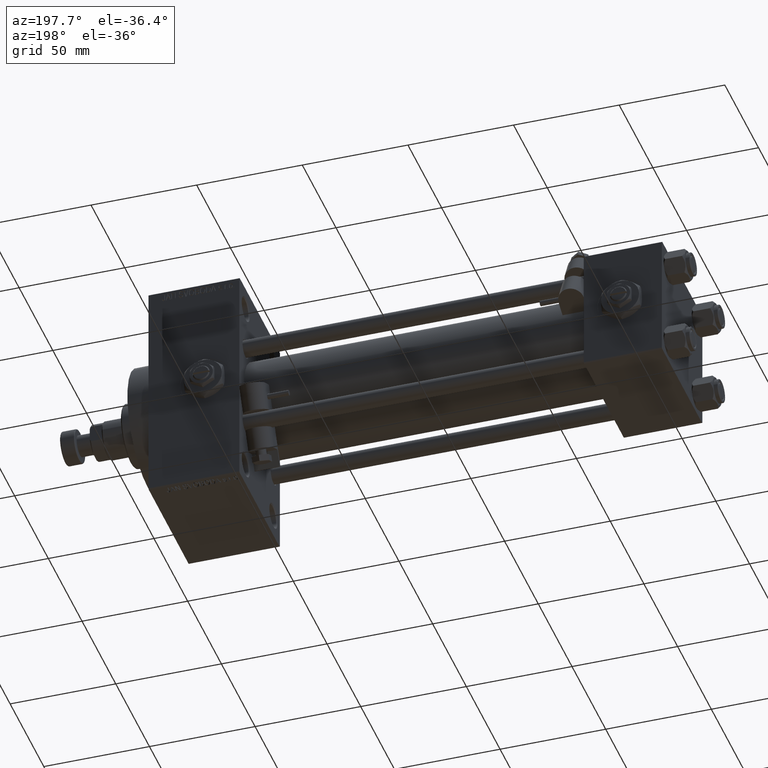
[diagram: clean part render]
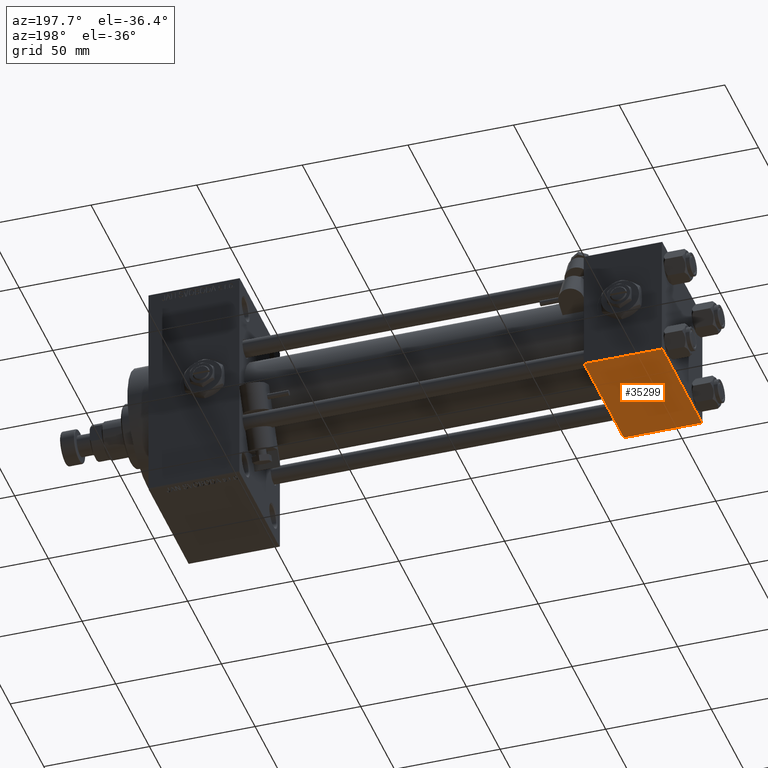
[diagram: same view with one face highlighted and labeled with its STEP entity id]
A machine part, auxiliary view. The second image highlights one B-rep face of the part: STEP entity #35299.
In plain terms, the highlighted planar face has unit normal (0, 0, -1).
Its self-contained STEP definition (entity closure, byte-faithful):
#923 = VECTOR ( 'NONE', #25284, 1000.000000000000000 ) ;
#1708 = DIRECTION ( 'NONE',  ( 1.000000000000000000, 0.000000000000000000, 0.000000000000000000 ) ) ;
#4203 = VERTEX_POINT ( 'NONE', #42463 ) ;
#9754 = ORIENTED_EDGE ( 'NONE', *, *, #27157, .T. ) ;
#10411 = CARTESIAN_POINT ( 'NONE',  ( 37.00000000000000000, 29.49999999999997868, -30.00000000000000000 ) ) ;
#11681 = DIRECTION ( 'NONE',  ( 0.000000000000000000, 1.000000000000000000, 1.156482317317871725E-16 ) ) ;
#12746 = CARTESIAN_POINT ( 'NONE',  ( 0.000000000000000000, -29.50000000000000000, -30.00000000000000711 ) ) ;
#15788 = PLANE ( 'NONE',  #21539 ) ;
#16704 = VERTEX_POINT ( 'NONE', #36531 ) ;
#17298 = LINE ( 'NONE', #33253, #44002 ) ;
#17738 = EDGE_LOOP ( 'NONE', ( #24082, #46786, #39044, #9754 ) ) ;
#18303 = DIRECTION ( 'NONE',  ( 0.000000000000000000, -1.000000000000000000, -1.156482317317871725E-16 ) ) ;
#19018 = CARTESIAN_POINT ( 'NONE',  ( 0.000000000000000000, 29.99999999999999289, -30.00000000000000000 ) ) ;
#19285 = DIRECTION ( 'NONE',  ( 0.000000000000000000, -1.000000000000000000, -1.156482317317871725E-16 ) ) ;
#21539 = AXIS2_PLACEMENT_3D ( 'NONE', #31473, #46874, #11681 ) ;
#21860 = CARTESIAN_POINT ( 'NONE',  ( 0.000000000000000000, 29.49999999999997868, -30.00000000000000000 ) ) ;
#22492 = LINE ( 'NONE', #10411, #39340 ) ;
#23307 = EDGE_CURVE ( 'NONE', #34859, #4203, #22492, .T. ) ;
#24082 = ORIENTED_EDGE ( 'NONE', *, *, #39159, .F. ) ;
#25284 = DIRECTION ( 'NONE',  ( -1.000000000000000000, 0.000000000000000000, 0.000000000000000000 ) ) ;
#27157 = EDGE_CURVE ( 'NONE', #16704, #37672, #44798, .T. ) ;
#30593 = VECTOR ( 'NONE', #19285, 1000.000000000000000 ) ;
#31225 = FACE_OUTER_BOUND ( 'NONE', #17738, .T. ) ;
#31473 = CARTESIAN_POINT ( 'NONE',  ( 37.00000000000000000, 29.99999999999999289, -30.00000000000000000 ) ) ;
#33253 = CARTESIAN_POINT ( 'NONE',  ( 37.00000000000000000, 29.99999999999999289, -30.00000000000000000 ) ) ;
#34859 = VERTEX_POINT ( 'NONE', #21860 ) ;
#35299 = ADVANCED_FACE ( 'NONE', ( #31225 ), #15788, .T. ) ;
#36531 = CARTESIAN_POINT ( 'NONE',  ( 37.00000000000000000, -29.50000000000000000, -30.00000000000000711 ) ) ;
#37672 = VERTEX_POINT ( 'NONE', #12746 ) ;
#38810 = LINE ( 'NONE', #19018, #30593 ) ;
#39044 = ORIENTED_EDGE ( 'NONE', *, *, #50254, .T. ) ;
#39159 = EDGE_CURVE ( 'NONE', #34859, #37672, #38810, .T. ) ;
#39340 = VECTOR ( 'NONE', #1708, 1000.000000000000000 ) ;
#42463 = CARTESIAN_POINT ( 'NONE',  ( 37.00000000000000000, 29.49999999999997868, -30.00000000000000000 ) ) ;
#44002 = VECTOR ( 'NONE', #18303, 1000.000000000000000 ) ;
#44798 = LINE ( 'NONE', #48381, #923 ) ;
#46786 = ORIENTED_EDGE ( 'NONE', *, *, #23307, .T. ) ;
#46874 = DIRECTION ( 'NONE',  ( 0.000000000000000000, 1.156482317317871725E-16, -1.000000000000000000 ) ) ;
#48381 = CARTESIAN_POINT ( 'NONE',  ( 0.000000000000000000, -29.50000000000001066, -30.00000000000000711 ) ) ;
#50254 = EDGE_CURVE ( 'NONE', #4203, #16704, #17298, .T. ) ;